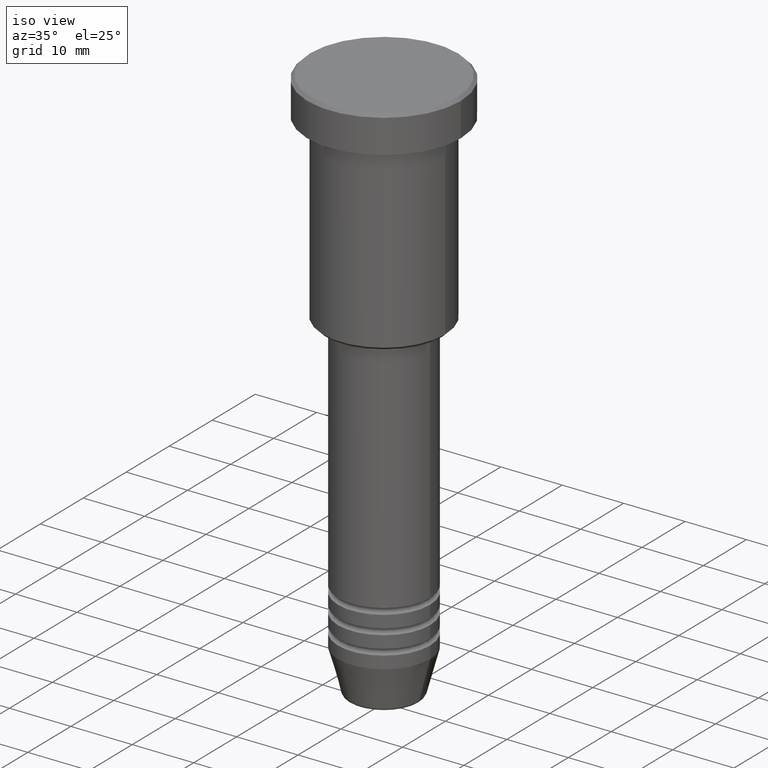
[diagram: clean part render]
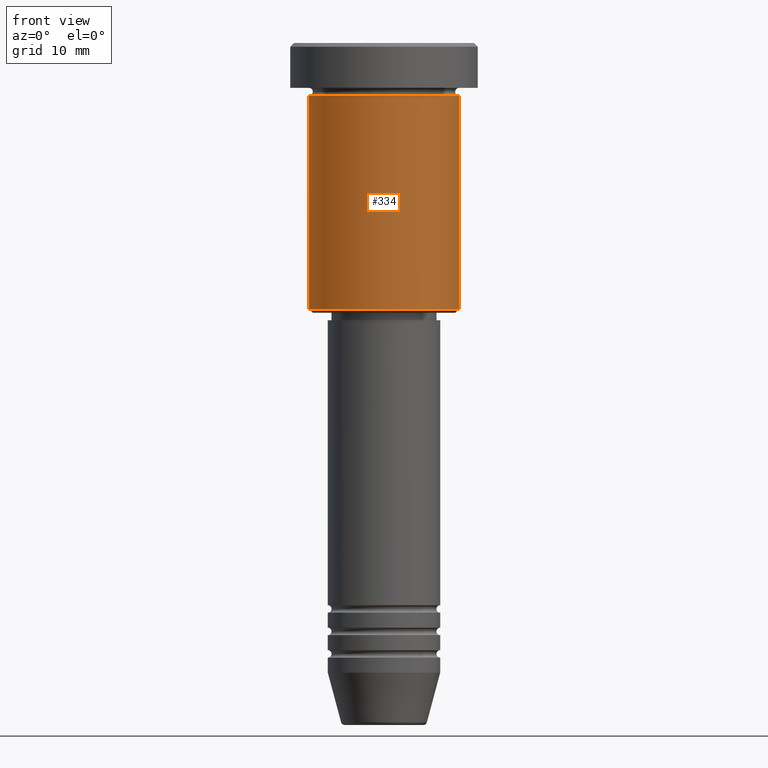
[diagram: tour spotlight — one face highlighted and labeled with its STEP entity id]
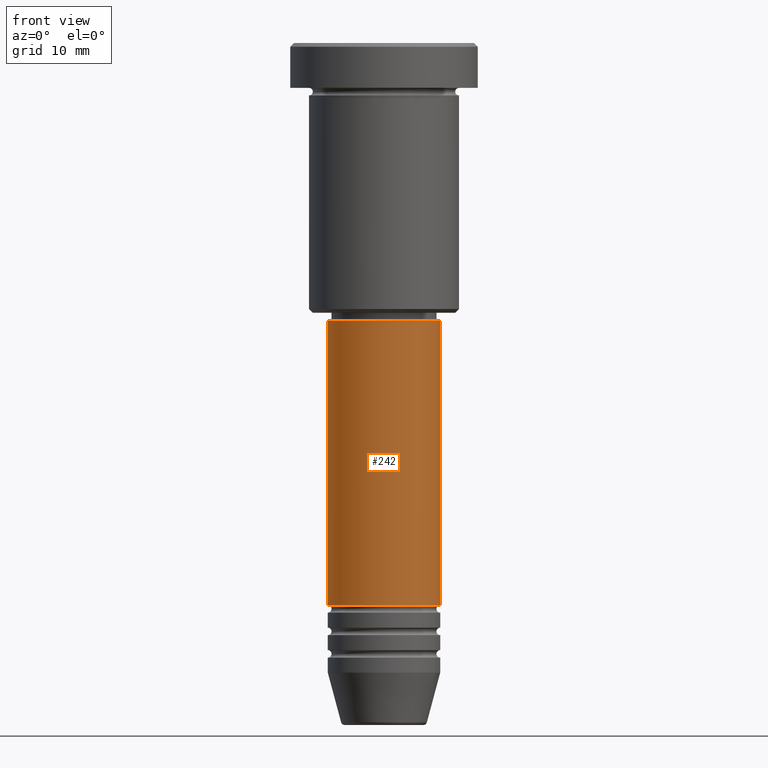
[diagram: tour spotlight — one face highlighted and labeled with its STEP entity id]
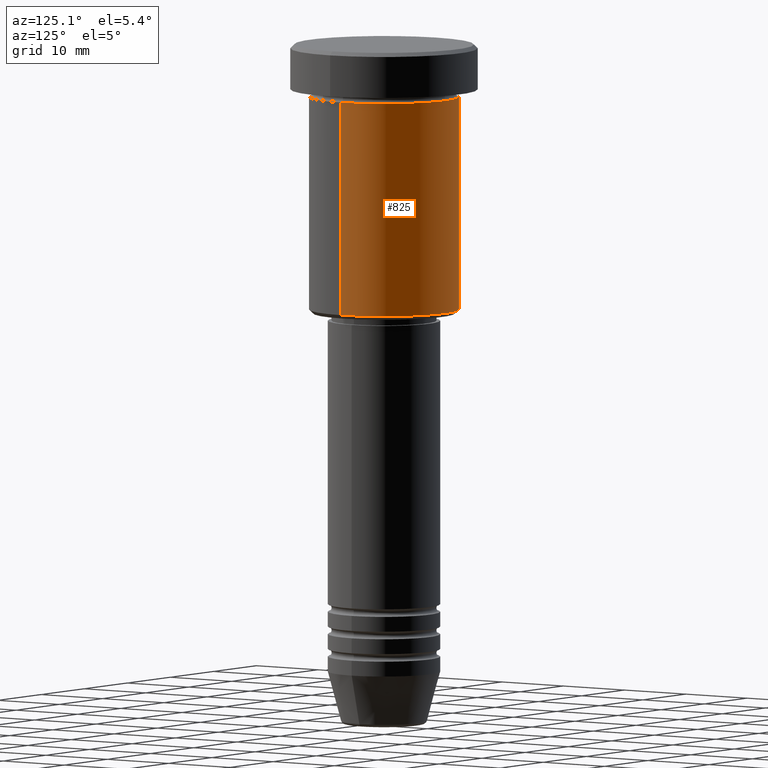
[diagram: tour spotlight — one face highlighted and labeled with its STEP entity id]
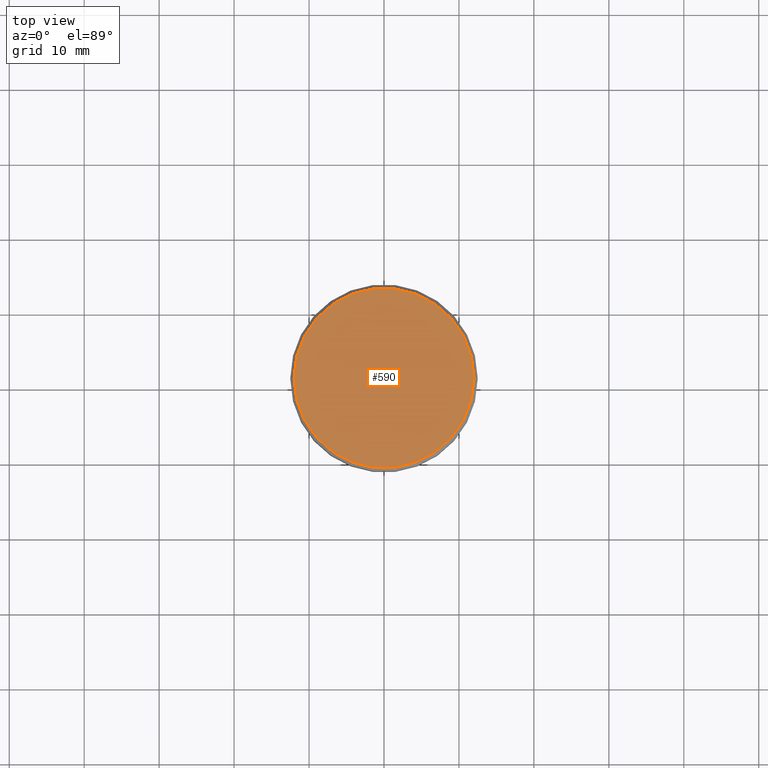
[diagram: tour spotlight — one face highlighted and labeled with its STEP entity id]
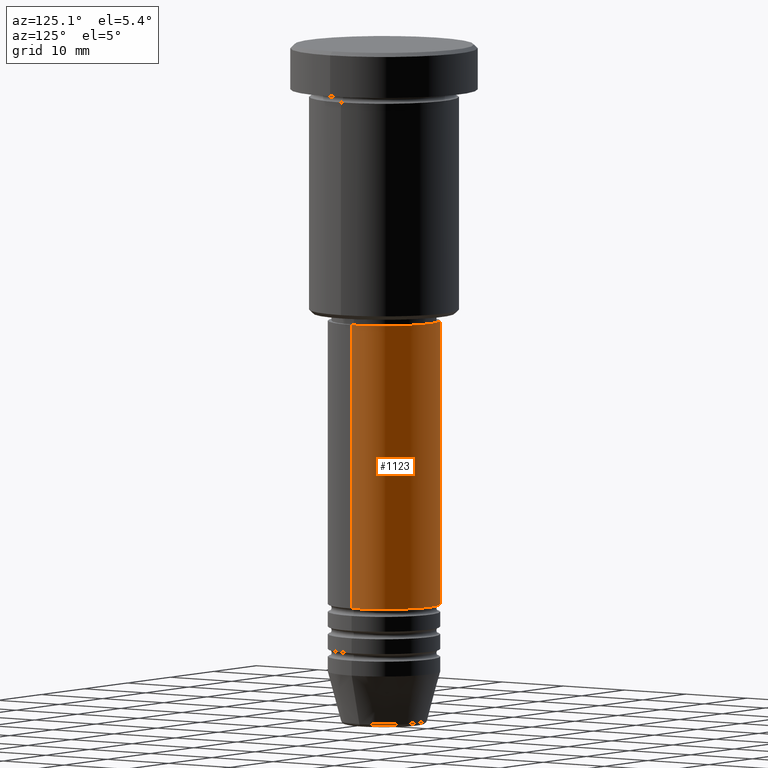
[diagram: tour spotlight — one face highlighted and labeled with its STEP entity id]
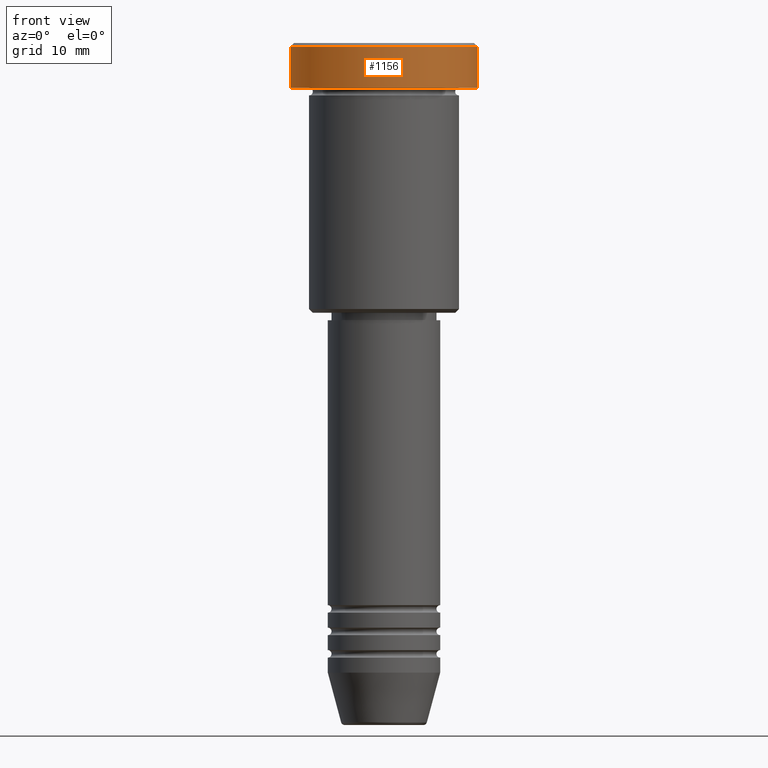
[diagram: tour spotlight — one face highlighted and labeled with its STEP entity id]
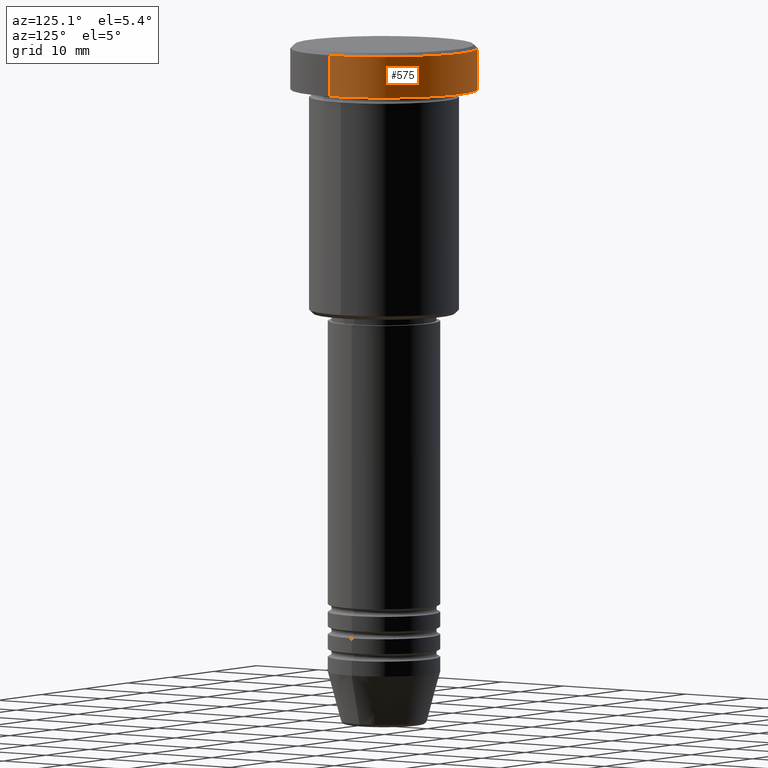
[diagram: tour spotlight — one face highlighted and labeled with its STEP entity id]
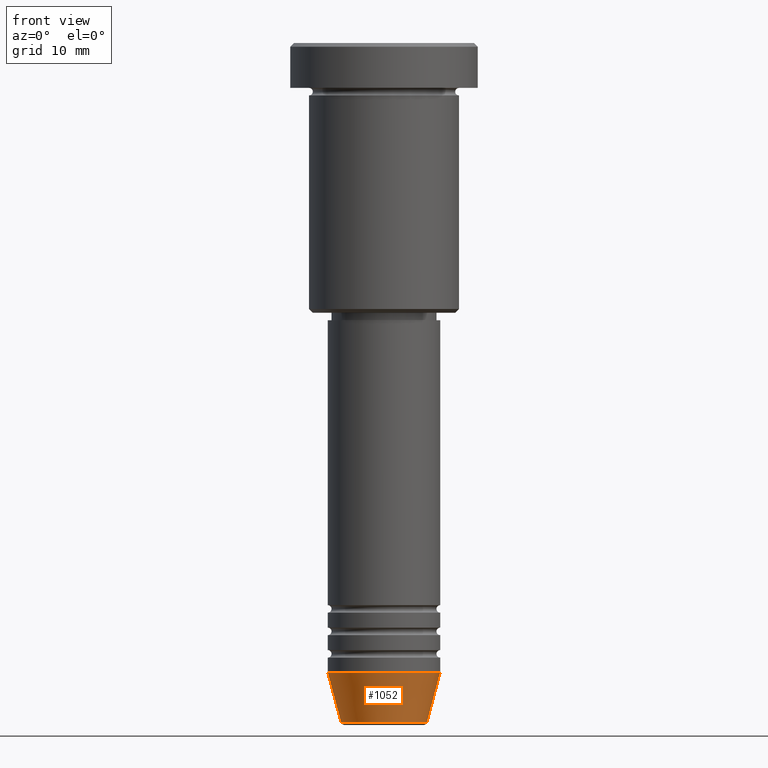
[diagram: tour spotlight — one face highlighted and labeled with its STEP entity id]
A machine part: a face-by-face anatomy tour. The part has 43 B-rep faces; the first image is the clean iso view, then the 8 largest visible faces are spotlighted one at a time (largest first), each with its STEP entity span.

Face 1 — front view, entity #334. In plain terms, the highlighted cylindrical surface (partial cylindrical patch) has radius 10 mm, axis along (-0, -0, 1).
Definition (entity closure, byte-faithful):
#3 = VERTEX_POINT ( 'NONE', #1124 ) ;
#12 = VERTEX_POINT ( 'NONE', #948 ) ;
#25 = DIRECTION ( 'NONE',  ( 1.000000000000000000, 0.000000000000000000, 0.000000000000000000 ) ) ;
#29 = DIRECTION ( 'NONE',  ( 1.000000000000000000, 0.000000000000000000, 0.000000000000000000 ) ) ;
#116 = DIRECTION ( 'NONE',  ( -0.000000000000000000, -0.000000000000000000, 1.000000000000000000 ) ) ;
#123 = CARTESIAN_POINT ( 'NONE',  ( 0.000000000000000000, 0.000000000000000000, 0.000000000000000000 ) ) ;
#198 = CARTESIAN_POINT ( 'NONE',  ( -10.00000000000000000, 1.224646799147353256E-15, -6.999999999999996447 ) ) ;
#221 = ORIENTED_EDGE ( 'NONE', *, *, #369, .F. ) ;
#268 = AXIS2_PLACEMENT_3D ( 'NONE', #569, #116, #25 ) ;
#322 = ORIENTED_EDGE ( 'NONE', *, *, #454, .T. ) ;
#334 = ADVANCED_FACE ( 'NONE', ( #506 ), #1049, .T. ) ;
#355 = CARTESIAN_POINT ( 'NONE',  ( 10.00000000000000000, 0.000000000000000000, 0.000000000000000000 ) ) ;
#369 = EDGE_CURVE ( 'NONE', #1082, #3, #681, .T. ) ;
#400 = CARTESIAN_POINT ( 'NONE',  ( -10.00000000000000000, 1.224646799147353256E-15, 0.000000000000000000 ) ) ;
#406 = CIRCLE ( 'NONE', #1009, 10.00000000000000000 ) ;
#454 = EDGE_CURVE ( 'NONE', #1033, #3, #1166, .T. ) ;
#468 = CARTESIAN_POINT ( 'NONE',  ( 0.000000000000000000, 0.000000000000000000, -35.49999999999999289 ) ) ;
#470 = ORIENTED_EDGE ( 'NONE', *, *, #1163, .T. ) ;
#506 = FACE_OUTER_BOUND ( 'NONE', #618, .T. ) ;
#531 = VECTOR ( 'NONE', #711, 1000.000000000000000 ) ;
#569 = CARTESIAN_POINT ( 'NONE',  ( 0.000000000000000000, 0.000000000000000000, -6.999999999999996447 ) ) ;
#618 = EDGE_LOOP ( 'NONE', ( #624, #470, #322, #221 ) ) ;
#624 = ORIENTED_EDGE ( 'NONE', *, *, #882, .F. ) ;
#660 = AXIS2_PLACEMENT_3D ( 'NONE', #123, #1127, #29 ) ;
#681 = CIRCLE ( 'NONE', #268, 10.00000000000000000 ) ;
#711 = DIRECTION ( 'NONE',  ( -0.000000000000000000, -0.000000000000000000, 1.000000000000000000 ) ) ;
#837 = DIRECTION ( 'NONE',  ( -1.000000000000000000, 0.000000000000000000, 0.000000000000000000 ) ) ;
#882 = EDGE_CURVE ( 'NONE', #12, #1082, #1061, .T. ) ;
#909 = DIRECTION ( 'NONE',  ( -0.000000000000000000, -0.000000000000000000, 1.000000000000000000 ) ) ;
#948 = CARTESIAN_POINT ( 'NONE',  ( -10.00000000000000000, 1.224646799147353256E-15, -35.49999999999999289 ) ) ;
#1009 = AXIS2_PLACEMENT_3D ( 'NONE', #468, #909, #837 ) ;
#1033 = VERTEX_POINT ( 'NONE', #1175 ) ;
#1049 = CYLINDRICAL_SURFACE ( 'NONE', #660, 10.00000000000000000 ) ;
#1061 = LINE ( 'NONE', #400, #1159 ) ;
#1075 = DIRECTION ( 'NONE',  ( -0.000000000000000000, -0.000000000000000000, 1.000000000000000000 ) ) ;
#1082 = VERTEX_POINT ( 'NONE', #198 ) ;
#1124 = CARTESIAN_POINT ( 'NONE',  ( 10.00000000000000000, 0.000000000000000000, -6.999999999999996447 ) ) ;
#1127 = DIRECTION ( 'NONE',  ( -0.000000000000000000, -0.000000000000000000, 1.000000000000000000 ) ) ;
#1159 = VECTOR ( 'NONE', #1075, 1000.000000000000000 ) ;
#1163 = EDGE_CURVE ( 'NONE', #12, #1033, #406, .T. ) ;
#1166 = LINE ( 'NONE', #355, #531 ) ;
#1175 = CARTESIAN_POINT ( 'NONE',  ( 10.00000000000000000, 0.000000000000000000, -35.49999999999999289 ) ) ;

Face 2 — front view, entity #242. In plain terms, the highlighted cylindrical surface (partial cylindrical patch) has radius 7.5 mm, axis along (-0, -0, 1).
Definition (entity closure, byte-faithful):
#13 = EDGE_CURVE ( 'NONE', #985, #992, #1116, .T. ) ;
#23 = VERTEX_POINT ( 'NONE', #34 ) ;
#24 = LINE ( 'NONE', #750, #234 ) ;
#34 = CARTESIAN_POINT ( 'NONE',  ( -7.500000000000000000, 9.184850993605147944E-16, -74.99999999999997158 ) ) ;
#59 = ORIENTED_EDGE ( 'NONE', *, *, #13, .T. ) ;
#204 = ORIENTED_EDGE ( 'NONE', *, *, #370, .F. ) ;
#223 = DIRECTION ( 'NONE',  ( -0.000000000000000000, -0.000000000000000000, 1.000000000000000000 ) ) ;
#234 = VECTOR ( 'NONE', #764, 1000.000000000000000 ) ;
#242 = ADVANCED_FACE ( 'NONE', ( #587 ), #944, .T. ) ;
#263 = CARTESIAN_POINT ( 'NONE',  ( -7.500000000000000000, 9.184850993605147944E-16, -36.99999999999996447 ) ) ;
#291 = AXIS2_PLACEMENT_3D ( 'NONE', #428, #1154, #872 ) ;
#370 = EDGE_CURVE ( 'NONE', #466, #992, #1097, .T. ) ;
#393 = CARTESIAN_POINT ( 'NONE',  ( 0.000000000000000000, 0.000000000000000000, -36.99999999999996447 ) ) ;
#409 = DIRECTION ( 'NONE',  ( 1.000000000000000000, 0.000000000000000000, 0.000000000000000000 ) ) ;
#428 = CARTESIAN_POINT ( 'NONE',  ( 0.000000000000000000, 0.000000000000000000, -74.99999999999997158 ) ) ;
#442 = DIRECTION ( 'NONE',  ( 1.000000000000000000, 0.000000000000000000, 0.000000000000000000 ) ) ;
#466 = VERTEX_POINT ( 'NONE', #263 ) ;
#509 = ORIENTED_EDGE ( 'NONE', *, *, #528, .T. ) ;
#512 = VECTOR ( 'NONE', #562, 1000.000000000000000 ) ;
#528 = EDGE_CURVE ( 'NONE', #23, #985, #800, .T. ) ;
#562 = DIRECTION ( 'NONE',  ( -0.000000000000000000, -0.000000000000000000, 1.000000000000000000 ) ) ;
#567 = AXIS2_PLACEMENT_3D ( 'NONE', #1037, #752, #409 ) ;
#572 = CARTESIAN_POINT ( 'NONE',  ( 7.500000000000000000, 0.000000000000000000, -74.99999999999997158 ) ) ;
#587 = FACE_OUTER_BOUND ( 'NONE', #725, .T. ) ;
#725 = EDGE_LOOP ( 'NONE', ( #963, #509, #59, #204 ) ) ;
#750 = CARTESIAN_POINT ( 'NONE',  ( -7.500000000000000000, 9.184850993605147944E-16, 0.000000000000000000 ) ) ;
#752 = DIRECTION ( 'NONE',  ( -0.000000000000000000, -0.000000000000000000, 1.000000000000000000 ) ) ;
#764 = DIRECTION ( 'NONE',  ( -0.000000000000000000, -0.000000000000000000, 1.000000000000000000 ) ) ;
#800 = CIRCLE ( 'NONE', #291, 7.500000000000000000 ) ;
#816 = AXIS2_PLACEMENT_3D ( 'NONE', #393, #223, #442 ) ;
#831 = CARTESIAN_POINT ( 'NONE',  ( 7.500000000000000000, 0.000000000000000000, -36.99999999999996447 ) ) ;
#841 = CARTESIAN_POINT ( 'NONE',  ( 7.500000000000000000, 0.000000000000000000, 0.000000000000000000 ) ) ;
#872 = DIRECTION ( 'NONE',  ( 1.000000000000000000, 0.000000000000000000, 0.000000000000000000 ) ) ;
#944 = CYLINDRICAL_SURFACE ( 'NONE', #567, 7.500000000000000000 ) ;
#963 = ORIENTED_EDGE ( 'NONE', *, *, #981, .F. ) ;
#981 = EDGE_CURVE ( 'NONE', #23, #466, #24, .T. ) ;
#985 = VERTEX_POINT ( 'NONE', #572 ) ;
#992 = VERTEX_POINT ( 'NONE', #831 ) ;
#1037 = CARTESIAN_POINT ( 'NONE',  ( 0.000000000000000000, 0.000000000000000000, 0.000000000000000000 ) ) ;
#1097 = CIRCLE ( 'NONE', #816, 7.500000000000000000 ) ;
#1116 = LINE ( 'NONE', #841, #512 ) ;
#1154 = DIRECTION ( 'NONE',  ( -0.000000000000000000, -0.000000000000000000, 1.000000000000000000 ) ) ;

Face 3 — auxiliary view, entity #825. In plain terms, the highlighted cylindrical surface (partial cylindrical patch) has radius 10 mm, axis along (-0, -0, 1).
Definition (entity closure, byte-faithful):
#3 = VERTEX_POINT ( 'NONE', #1124 ) ;
#12 = VERTEX_POINT ( 'NONE', #948 ) ;
#77 = ORIENTED_EDGE ( 'NONE', *, *, #144, .F. ) ;
#144 = EDGE_CURVE ( 'NONE', #3, #1082, #955, .T. ) ;
#160 = DIRECTION ( 'NONE',  ( -0.000000000000000000, -0.000000000000000000, 1.000000000000000000 ) ) ;
#178 = EDGE_LOOP ( 'NONE', ( #1128, #239, #77, #751 ) ) ;
#179 = DIRECTION ( 'NONE',  ( -0.000000000000000000, -0.000000000000000000, 1.000000000000000000 ) ) ;
#198 = CARTESIAN_POINT ( 'NONE',  ( -10.00000000000000000, 1.224646799147353256E-15, -6.999999999999996447 ) ) ;
#224 = CYLINDRICAL_SURFACE ( 'NONE', #571, 10.00000000000000000 ) ;
#239 = ORIENTED_EDGE ( 'NONE', *, *, #882, .T. ) ;
#295 = CARTESIAN_POINT ( 'NONE',  ( 0.000000000000000000, 0.000000000000000000, -35.49999999999999289 ) ) ;
#355 = CARTESIAN_POINT ( 'NONE',  ( 10.00000000000000000, 0.000000000000000000, 0.000000000000000000 ) ) ;
#400 = CARTESIAN_POINT ( 'NONE',  ( -10.00000000000000000, 1.224646799147353256E-15, 0.000000000000000000 ) ) ;
#404 = CIRCLE ( 'NONE', #644, 10.00000000000000000 ) ;
#435 = AXIS2_PLACEMENT_3D ( 'NONE', #479, #179, #845 ) ;
#444 = CARTESIAN_POINT ( 'NONE',  ( 0.000000000000000000, 0.000000000000000000, 0.000000000000000000 ) ) ;
#454 = EDGE_CURVE ( 'NONE', #1033, #3, #1166, .T. ) ;
#479 = CARTESIAN_POINT ( 'NONE',  ( 0.000000000000000000, 0.000000000000000000, -6.999999999999996447 ) ) ;
#531 = VECTOR ( 'NONE', #711, 1000.000000000000000 ) ;
#571 = AXIS2_PLACEMENT_3D ( 'NONE', #444, #160, #688 ) ;
#644 = AXIS2_PLACEMENT_3D ( 'NONE', #295, #927, #744 ) ;
#688 = DIRECTION ( 'NONE',  ( 1.000000000000000000, 0.000000000000000000, 0.000000000000000000 ) ) ;
#711 = DIRECTION ( 'NONE',  ( -0.000000000000000000, -0.000000000000000000, 1.000000000000000000 ) ) ;
#744 = DIRECTION ( 'NONE',  ( -1.000000000000000000, 0.000000000000000000, 0.000000000000000000 ) ) ;
#751 = ORIENTED_EDGE ( 'NONE', *, *, #454, .F. ) ;
#825 = ADVANCED_FACE ( 'NONE', ( #946 ), #224, .T. ) ;
#845 = DIRECTION ( 'NONE',  ( 1.000000000000000000, 0.000000000000000000, 0.000000000000000000 ) ) ;
#882 = EDGE_CURVE ( 'NONE', #12, #1082, #1061, .T. ) ;
#890 = EDGE_CURVE ( 'NONE', #1033, #12, #404, .T. ) ;
#927 = DIRECTION ( 'NONE',  ( -0.000000000000000000, -0.000000000000000000, 1.000000000000000000 ) ) ;
#946 = FACE_OUTER_BOUND ( 'NONE', #178, .T. ) ;
#948 = CARTESIAN_POINT ( 'NONE',  ( -10.00000000000000000, 1.224646799147353256E-15, -35.49999999999999289 ) ) ;
#955 = CIRCLE ( 'NONE', #435, 10.00000000000000000 ) ;
#1033 = VERTEX_POINT ( 'NONE', #1175 ) ;
#1061 = LINE ( 'NONE', #400, #1159 ) ;
#1075 = DIRECTION ( 'NONE',  ( -0.000000000000000000, -0.000000000000000000, 1.000000000000000000 ) ) ;
#1082 = VERTEX_POINT ( 'NONE', #198 ) ;
#1124 = CARTESIAN_POINT ( 'NONE',  ( 10.00000000000000000, 0.000000000000000000, -6.999999999999996447 ) ) ;
#1128 = ORIENTED_EDGE ( 'NONE', *, *, #890, .T. ) ;
#1159 = VECTOR ( 'NONE', #1075, 1000.000000000000000 ) ;
#1166 = LINE ( 'NONE', #355, #531 ) ;
#1175 = CARTESIAN_POINT ( 'NONE',  ( 10.00000000000000000, 0.000000000000000000, -35.49999999999999289 ) ) ;

Face 4 — top view, entity #590. In plain terms, the highlighted planar face has unit normal (0, -0, 1).
Definition (entity closure, byte-faithful):
#61 = CARTESIAN_POINT ( 'NONE',  ( 0.000000000000000000, 0.000000000000000000, 0.000000000000000000 ) ) ;
#118 = DIRECTION ( 'NONE',  ( 1.000000000000000000, 0.000000000000000000, 0.000000000000000000 ) ) ;
#132 = ORIENTED_EDGE ( 'NONE', *, *, #806, .T. ) ;
#147 = CARTESIAN_POINT ( 'NONE',  ( 0.000000000000000000, 0.000000000000000000, 0.000000000000000000 ) ) ;
#167 = PLANE ( 'NONE',  #347 ) ;
#278 = DIRECTION ( 'NONE',  ( 1.000000000000000000, 0.000000000000000000, 0.000000000000000000 ) ) ;
#292 = AXIS2_PLACEMENT_3D ( 'NONE', #147, #1113, #118 ) ;
#347 = AXIS2_PLACEMENT_3D ( 'NONE', #818, #546, #278 ) ;
#391 = VERTEX_POINT ( 'NONE', #698 ) ;
#432 = DIRECTION ( 'NONE',  ( -0.000000000000000000, -0.000000000000000000, 1.000000000000000000 ) ) ;
#460 = CIRCLE ( 'NONE', #292, 11.99999999999998224 ) ;
#546 = DIRECTION ( 'NONE',  ( 0.000000000000000000, -0.000000000000000000, 1.000000000000000000 ) ) ;
#551 = AXIS2_PLACEMENT_3D ( 'NONE', #61, #432, #953 ) ;
#590 = ADVANCED_FACE ( 'NONE', ( #1090 ), #167, .T. ) ;
#698 = CARTESIAN_POINT ( 'NONE',  ( 11.99999999999998224, 1.500192328955506354E-15, 0.000000000000000000 ) ) ;
#743 = VERTEX_POINT ( 'NONE', #1167 ) ;
#755 = ORIENTED_EDGE ( 'NONE', *, *, #1011, .T. ) ;
#806 = EDGE_CURVE ( 'NONE', #391, #743, #460, .T. ) ;
#818 = CARTESIAN_POINT ( 'NONE',  ( 0.000000000000000000, 0.000000000000000000, 0.000000000000000000 ) ) ;
#953 = DIRECTION ( 'NONE',  ( 1.000000000000000000, 0.000000000000000000, 0.000000000000000000 ) ) ;
#1011 = EDGE_CURVE ( 'NONE', #743, #391, #1101, .T. ) ;
#1044 = EDGE_LOOP ( 'NONE', ( #755, #132 ) ) ;
#1090 = FACE_OUTER_BOUND ( 'NONE', #1044, .T. ) ;
#1101 = CIRCLE ( 'NONE', #551, 11.99999999999998224 ) ;
#1113 = DIRECTION ( 'NONE',  ( -0.000000000000000000, -0.000000000000000000, 1.000000000000000000 ) ) ;
#1167 = CARTESIAN_POINT ( 'NONE',  ( -11.99999999999998224, 0.000000000000000000, 0.000000000000000000 ) ) ;

Face 5 — auxiliary view, entity #1123. In plain terms, the highlighted cylindrical surface (partial cylindrical patch) has radius 7.5 mm, axis along (-0, -0, 1).
Definition (entity closure, byte-faithful):
#13 = EDGE_CURVE ( 'NONE', #985, #992, #1116, .T. ) ;
#23 = VERTEX_POINT ( 'NONE', #34 ) ;
#24 = LINE ( 'NONE', #750, #234 ) ;
#34 = CARTESIAN_POINT ( 'NONE',  ( -7.500000000000000000, 9.184850993605147944E-16, -74.99999999999997158 ) ) ;
#82 = ORIENTED_EDGE ( 'NONE', *, *, #981, .T. ) ;
#93 = CARTESIAN_POINT ( 'NONE',  ( 0.000000000000000000, 0.000000000000000000, -74.99999999999997158 ) ) ;
#104 = CYLINDRICAL_SURFACE ( 'NONE', #1030, 7.500000000000000000 ) ;
#234 = VECTOR ( 'NONE', #764, 1000.000000000000000 ) ;
#263 = CARTESIAN_POINT ( 'NONE',  ( -7.500000000000000000, 9.184850993605147944E-16, -36.99999999999996447 ) ) ;
#310 = AXIS2_PLACEMENT_3D ( 'NONE', #971, #510, #1147 ) ;
#328 = AXIS2_PLACEMENT_3D ( 'NONE', #93, #826, #352 ) ;
#345 = CIRCLE ( 'NONE', #310, 7.500000000000000000 ) ;
#352 = DIRECTION ( 'NONE',  ( 1.000000000000000000, 0.000000000000000000, 0.000000000000000000 ) ) ;
#376 = EDGE_CURVE ( 'NONE', #992, #466, #345, .T. ) ;
#466 = VERTEX_POINT ( 'NONE', #263 ) ;
#476 = DIRECTION ( 'NONE',  ( -0.000000000000000000, -0.000000000000000000, 1.000000000000000000 ) ) ;
#510 = DIRECTION ( 'NONE',  ( -0.000000000000000000, -0.000000000000000000, 1.000000000000000000 ) ) ;
#512 = VECTOR ( 'NONE', #562, 1000.000000000000000 ) ;
#562 = DIRECTION ( 'NONE',  ( -0.000000000000000000, -0.000000000000000000, 1.000000000000000000 ) ) ;
#572 = CARTESIAN_POINT ( 'NONE',  ( 7.500000000000000000, 0.000000000000000000, -74.99999999999997158 ) ) ;
#608 = EDGE_CURVE ( 'NONE', #985, #23, #913, .T. ) ;
#655 = DIRECTION ( 'NONE',  ( 1.000000000000000000, 0.000000000000000000, 0.000000000000000000 ) ) ;
#729 = EDGE_LOOP ( 'NONE', ( #827, #82, #996, #995 ) ) ;
#750 = CARTESIAN_POINT ( 'NONE',  ( -7.500000000000000000, 9.184850993605147944E-16, 0.000000000000000000 ) ) ;
#764 = DIRECTION ( 'NONE',  ( -0.000000000000000000, -0.000000000000000000, 1.000000000000000000 ) ) ;
#826 = DIRECTION ( 'NONE',  ( -0.000000000000000000, -0.000000000000000000, 1.000000000000000000 ) ) ;
#827 = ORIENTED_EDGE ( 'NONE', *, *, #608, .T. ) ;
#831 = CARTESIAN_POINT ( 'NONE',  ( 7.500000000000000000, 0.000000000000000000, -36.99999999999996447 ) ) ;
#841 = CARTESIAN_POINT ( 'NONE',  ( 7.500000000000000000, 0.000000000000000000, 0.000000000000000000 ) ) ;
#913 = CIRCLE ( 'NONE', #328, 7.500000000000000000 ) ;
#940 = FACE_OUTER_BOUND ( 'NONE', #729, .T. ) ;
#971 = CARTESIAN_POINT ( 'NONE',  ( 0.000000000000000000, 0.000000000000000000, -36.99999999999996447 ) ) ;
#981 = EDGE_CURVE ( 'NONE', #23, #466, #24, .T. ) ;
#985 = VERTEX_POINT ( 'NONE', #572 ) ;
#992 = VERTEX_POINT ( 'NONE', #831 ) ;
#995 = ORIENTED_EDGE ( 'NONE', *, *, #13, .F. ) ;
#996 = ORIENTED_EDGE ( 'NONE', *, *, #376, .F. ) ;
#1004 = CARTESIAN_POINT ( 'NONE',  ( 0.000000000000000000, 0.000000000000000000, 0.000000000000000000 ) ) ;
#1030 = AXIS2_PLACEMENT_3D ( 'NONE', #1004, #476, #655 ) ;
#1116 = LINE ( 'NONE', #841, #512 ) ;
#1123 = ADVANCED_FACE ( 'NONE', ( #940 ), #104, .T. ) ;
#1147 = DIRECTION ( 'NONE',  ( 1.000000000000000000, 0.000000000000000000, 0.000000000000000000 ) ) ;

Face 6 — front view, entity #1156. In plain terms, the highlighted cylindrical surface (partial cylindrical patch) has radius 12.5 mm, axis along (-0, -0, 1).
Definition (entity closure, byte-faithful):
#63 = CARTESIAN_POINT ( 'NONE',  ( -12.50000000000000000, 1.530808498934191521E-15, -5.999999999999996447 ) ) ;
#70 = VECTOR ( 'NONE', #760, 1000.000000000000000 ) ;
#71 = LINE ( 'NONE', #888, #496 ) ;
#91 = CIRCLE ( 'NONE', #781, 12.50000000000000000 ) ;
#107 = DIRECTION ( 'NONE',  ( 1.000000000000000000, 0.000000000000000000, 0.000000000000000000 ) ) ;
#146 = DIRECTION ( 'NONE',  ( -0.000000000000000000, -0.000000000000000000, 1.000000000000000000 ) ) ;
#159 = DIRECTION ( 'NONE',  ( 1.000000000000000000, 0.000000000000000000, 0.000000000000000000 ) ) ;
#251 = AXIS2_PLACEMENT_3D ( 'NONE', #1094, #723, #107 ) ;
#258 = EDGE_CURVE ( 'NONE', #458, #377, #672, .T. ) ;
#324 = CARTESIAN_POINT ( 'NONE',  ( 12.50000000000000000, 0.000000000000000000, 0.000000000000000000 ) ) ;
#368 = FACE_OUTER_BOUND ( 'NONE', #1162, .T. ) ;
#377 = VERTEX_POINT ( 'NONE', #880 ) ;
#452 = EDGE_CURVE ( 'NONE', #526, #954, #71, .T. ) ;
#458 = VERTEX_POINT ( 'NONE', #1072 ) ;
#496 = VECTOR ( 'NONE', #146, 1000.000000000000000 ) ;
#526 = VERTEX_POINT ( 'NONE', #63 ) ;
#607 = EDGE_CURVE ( 'NONE', #526, #458, #759, .T. ) ;
#609 = CARTESIAN_POINT ( 'NONE',  ( 0.000000000000000000, 0.000000000000000000, -0.5000000000000196509 ) ) ;
#635 = ORIENTED_EDGE ( 'NONE', *, *, #607, .T. ) ;
#672 = LINE ( 'NONE', #324, #70 ) ;
#699 = DIRECTION ( 'NONE',  ( 0.000000000000000000, 0.000000000000000000, -1.000000000000000000 ) ) ;
#723 = DIRECTION ( 'NONE',  ( -0.000000000000000000, -0.000000000000000000, 1.000000000000000000 ) ) ;
#731 = EDGE_CURVE ( 'NONE', #377, #954, #91, .T. ) ;
#758 = ORIENTED_EDGE ( 'NONE', *, *, #452, .F. ) ;
#759 = CIRCLE ( 'NONE', #842, 12.50000000000000000 ) ;
#760 = DIRECTION ( 'NONE',  ( -0.000000000000000000, -0.000000000000000000, 1.000000000000000000 ) ) ;
#781 = AXIS2_PLACEMENT_3D ( 'NONE', #609, #699, #159 ) ;
#842 = AXIS2_PLACEMENT_3D ( 'NONE', #999, #914, #1161 ) ;
#852 = ORIENTED_EDGE ( 'NONE', *, *, #258, .T. ) ;
#853 = ORIENTED_EDGE ( 'NONE', *, *, #731, .T. ) ;
#880 = CARTESIAN_POINT ( 'NONE',  ( 12.50000000000000000, 0.000000000000000000, -0.5000000000000196509 ) ) ;
#888 = CARTESIAN_POINT ( 'NONE',  ( -12.50000000000000000, 1.530808498934191521E-15, 0.000000000000000000 ) ) ;
#914 = DIRECTION ( 'NONE',  ( -0.000000000000000000, -0.000000000000000000, 1.000000000000000000 ) ) ;
#920 = CYLINDRICAL_SURFACE ( 'NONE', #251, 12.50000000000000000 ) ;
#954 = VERTEX_POINT ( 'NONE', #1102 ) ;
#999 = CARTESIAN_POINT ( 'NONE',  ( 0.000000000000000000, 0.000000000000000000, -5.999999999999996447 ) ) ;
#1072 = CARTESIAN_POINT ( 'NONE',  ( 12.50000000000000000, 0.000000000000000000, -5.999999999999996447 ) ) ;
#1094 = CARTESIAN_POINT ( 'NONE',  ( 0.000000000000000000, 0.000000000000000000, 0.000000000000000000 ) ) ;
#1102 = CARTESIAN_POINT ( 'NONE',  ( -12.50000000000000000, 1.530808498934191521E-15, -0.5000000000000196509 ) ) ;
#1156 = ADVANCED_FACE ( 'NONE', ( #368 ), #920, .T. ) ;
#1161 = DIRECTION ( 'NONE',  ( 1.000000000000000000, 0.000000000000000000, 0.000000000000000000 ) ) ;
#1162 = EDGE_LOOP ( 'NONE', ( #758, #635, #852, #853 ) ) ;

Face 7 — auxiliary view, entity #575. In plain terms, the highlighted cylindrical surface (partial cylindrical patch) has radius 12.5 mm, axis along (-0, -0, 1).
Definition (entity closure, byte-faithful):
#52 = DIRECTION ( 'NONE',  ( 1.000000000000000000, 0.000000000000000000, 0.000000000000000000 ) ) ;
#63 = CARTESIAN_POINT ( 'NONE',  ( -12.50000000000000000, 1.530808498934191521E-15, -5.999999999999996447 ) ) ;
#70 = VECTOR ( 'NONE', #760, 1000.000000000000000 ) ;
#71 = LINE ( 'NONE', #888, #496 ) ;
#103 = DIRECTION ( 'NONE',  ( 0.000000000000000000, 0.000000000000000000, -1.000000000000000000 ) ) ;
#146 = DIRECTION ( 'NONE',  ( -0.000000000000000000, -0.000000000000000000, 1.000000000000000000 ) ) ;
#162 = EDGE_LOOP ( 'NONE', ( #1039, #906, #478, #586 ) ) ;
#165 = EDGE_CURVE ( 'NONE', #954, #377, #1026, .T. ) ;
#176 = CARTESIAN_POINT ( 'NONE',  ( 0.000000000000000000, 0.000000000000000000, 0.000000000000000000 ) ) ;
#258 = EDGE_CURVE ( 'NONE', #458, #377, #672, .T. ) ;
#266 = CYLINDRICAL_SURFACE ( 'NONE', #1099, 12.50000000000000000 ) ;
#324 = CARTESIAN_POINT ( 'NONE',  ( 12.50000000000000000, 0.000000000000000000, 0.000000000000000000 ) ) ;
#377 = VERTEX_POINT ( 'NONE', #880 ) ;
#421 = AXIS2_PLACEMENT_3D ( 'NONE', #645, #103, #1083 ) ;
#452 = EDGE_CURVE ( 'NONE', #526, #954, #71, .T. ) ;
#458 = VERTEX_POINT ( 'NONE', #1072 ) ;
#478 = ORIENTED_EDGE ( 'NONE', *, *, #165, .T. ) ;
#496 = VECTOR ( 'NONE', #146, 1000.000000000000000 ) ;
#526 = VERTEX_POINT ( 'NONE', #63 ) ;
#535 = EDGE_CURVE ( 'NONE', #458, #526, #1142, .T. ) ;
#575 = ADVANCED_FACE ( 'NONE', ( #601 ), #266, .T. ) ;
#586 = ORIENTED_EDGE ( 'NONE', *, *, #258, .F. ) ;
#601 = FACE_OUTER_BOUND ( 'NONE', #162, .T. ) ;
#645 = CARTESIAN_POINT ( 'NONE',  ( 0.000000000000000000, 0.000000000000000000, -0.5000000000000196509 ) ) ;
#672 = LINE ( 'NONE', #324, #70 ) ;
#686 = DIRECTION ( 'NONE',  ( -0.000000000000000000, -0.000000000000000000, 1.000000000000000000 ) ) ;
#728 = DIRECTION ( 'NONE',  ( 1.000000000000000000, 0.000000000000000000, 0.000000000000000000 ) ) ;
#760 = DIRECTION ( 'NONE',  ( -0.000000000000000000, -0.000000000000000000, 1.000000000000000000 ) ) ;
#880 = CARTESIAN_POINT ( 'NONE',  ( 12.50000000000000000, 0.000000000000000000, -0.5000000000000196509 ) ) ;
#888 = CARTESIAN_POINT ( 'NONE',  ( -12.50000000000000000, 1.530808498934191521E-15, 0.000000000000000000 ) ) ;
#891 = CARTESIAN_POINT ( 'NONE',  ( 0.000000000000000000, 0.000000000000000000, -5.999999999999996447 ) ) ;
#906 = ORIENTED_EDGE ( 'NONE', *, *, #452, .T. ) ;
#935 = AXIS2_PLACEMENT_3D ( 'NONE', #891, #686, #52 ) ;
#954 = VERTEX_POINT ( 'NONE', #1102 ) ;
#1026 = CIRCLE ( 'NONE', #421, 12.50000000000000000 ) ;
#1039 = ORIENTED_EDGE ( 'NONE', *, *, #535, .T. ) ;
#1068 = DIRECTION ( 'NONE',  ( -0.000000000000000000, -0.000000000000000000, 1.000000000000000000 ) ) ;
#1072 = CARTESIAN_POINT ( 'NONE',  ( 12.50000000000000000, 0.000000000000000000, -5.999999999999996447 ) ) ;
#1083 = DIRECTION ( 'NONE',  ( 1.000000000000000000, 0.000000000000000000, 0.000000000000000000 ) ) ;
#1099 = AXIS2_PLACEMENT_3D ( 'NONE', #176, #1068, #728 ) ;
#1102 = CARTESIAN_POINT ( 'NONE',  ( -12.50000000000000000, 1.530808498934191521E-15, -0.5000000000000196509 ) ) ;
#1142 = CIRCLE ( 'NONE', #935, 12.50000000000000000 ) ;

Face 8 — front view, entity #1052. In plain terms, the highlighted conical surface has half-angle 15 deg.
Definition (entity closure, byte-faithful):
#5 = DIRECTION ( 'NONE',  ( -0.000000000000000000, -0.000000000000000000, 1.000000000000000000 ) ) ;
#10 = ORIENTED_EDGE ( 'NONE', *, *, #113, .T. ) ;
#64 = ORIENTED_EDGE ( 'NONE', *, *, #949, .T. ) ;
#96 = CARTESIAN_POINT ( 'NONE',  ( 0.000000000000000000, 0.000000000000000000, -90.62940952255125637 ) ) ;
#112 = CONICAL_SURFACE ( 'NONE', #212, 7.500000000000000000, 0.2617993877991500740 ) ;
#113 = EDGE_CURVE ( 'NONE', #631, #809, #1025, .T. ) ;
#121 = DIRECTION ( 'NONE',  ( 0.2588190451025213501, 0.000000000000000000, 0.9659258262890680902 ) ) ;
#195 = LINE ( 'NONE', #301, #348 ) ;
#209 = CARTESIAN_POINT ( 'NONE',  ( 0.000000000000000000, 0.000000000000000000, -83.99999999999998579 ) ) ;
#212 = AXIS2_PLACEMENT_3D ( 'NONE', #209, #5, #638 ) ;
#248 = AXIS2_PLACEMENT_3D ( 'NONE', #96, #1104, #823 ) ;
#259 = CARTESIAN_POINT ( 'NONE',  ( -7.500000000000000000, 9.184850993605147944E-16, -83.99999999999998579 ) ) ;
#273 = CARTESIAN_POINT ( 'NONE',  ( -5.723655072137190380, 8.097153428560735915E-16, -90.62940952255125637 ) ) ;
#301 = CARTESIAN_POINT ( 'NONE',  ( 7.500000000000000000, 0.000000000000000000, -83.99999999999998579 ) ) ;
#335 = LINE ( 'NONE', #689, #974 ) ;
#337 = CARTESIAN_POINT ( 'NONE',  ( 0.000000000000000000, 0.000000000000000000, -83.99999999999998579 ) ) ;
#348 = VECTOR ( 'NONE', #121, 1000.000000000000000 ) ;
#353 = ORIENTED_EDGE ( 'NONE', *, *, #413, .F. ) ;
#389 = FACE_OUTER_BOUND ( 'NONE', #405, .T. ) ;
#405 = EDGE_LOOP ( 'NONE', ( #1076, #10, #64, #353 ) ) ;
#413 = EDGE_CURVE ( 'NONE', #847, #1086, #1141, .T. ) ;
#495 = AXIS2_PLACEMENT_3D ( 'NONE', #337, #612, #980 ) ;
#580 = CARTESIAN_POINT ( 'NONE',  ( 5.723655072137191269, 0.000000000000000000, -90.62940952255125637 ) ) ;
#612 = DIRECTION ( 'NONE',  ( -0.000000000000000000, -0.000000000000000000, 1.000000000000000000 ) ) ;
#631 = VERTEX_POINT ( 'NONE', #273 ) ;
#638 = DIRECTION ( 'NONE',  ( 1.000000000000000000, 0.000000000000000000, 0.000000000000000000 ) ) ;
#689 = CARTESIAN_POINT ( 'NONE',  ( -7.500000000000000000, 9.184850993605147944E-16, -83.99999999999998579 ) ) ;
#802 = EDGE_CURVE ( 'NONE', #631, #847, #335, .T. ) ;
#809 = VERTEX_POINT ( 'NONE', #580 ) ;
#823 = DIRECTION ( 'NONE',  ( 1.000000000000000000, 0.000000000000000000, 0.000000000000000000 ) ) ;
#847 = VERTEX_POINT ( 'NONE', #259 ) ;
#883 = DIRECTION ( 'NONE',  ( -0.2588190451025213501, 3.169619151431772337E-17, 0.9659258262890680902 ) ) ;
#949 = EDGE_CURVE ( 'NONE', #809, #1086, #195, .T. ) ;
#974 = VECTOR ( 'NONE', #883, 1000.000000000000000 ) ;
#980 = DIRECTION ( 'NONE',  ( 1.000000000000000000, 0.000000000000000000, 0.000000000000000000 ) ) ;
#1025 = CIRCLE ( 'NONE', #248, 5.723655072137191269 ) ;
#1052 = ADVANCED_FACE ( 'NONE', ( #389 ), #112, .T. ) ;
#1076 = ORIENTED_EDGE ( 'NONE', *, *, #802, .F. ) ;
#1086 = VERTEX_POINT ( 'NONE', #1111 ) ;
#1104 = DIRECTION ( 'NONE',  ( -0.000000000000000000, -0.000000000000000000, 1.000000000000000000 ) ) ;
#1111 = CARTESIAN_POINT ( 'NONE',  ( 7.500000000000000000, 0.000000000000000000, -83.99999999999998579 ) ) ;
#1141 = CIRCLE ( 'NONE', #495, 7.500000000000000000 ) ;